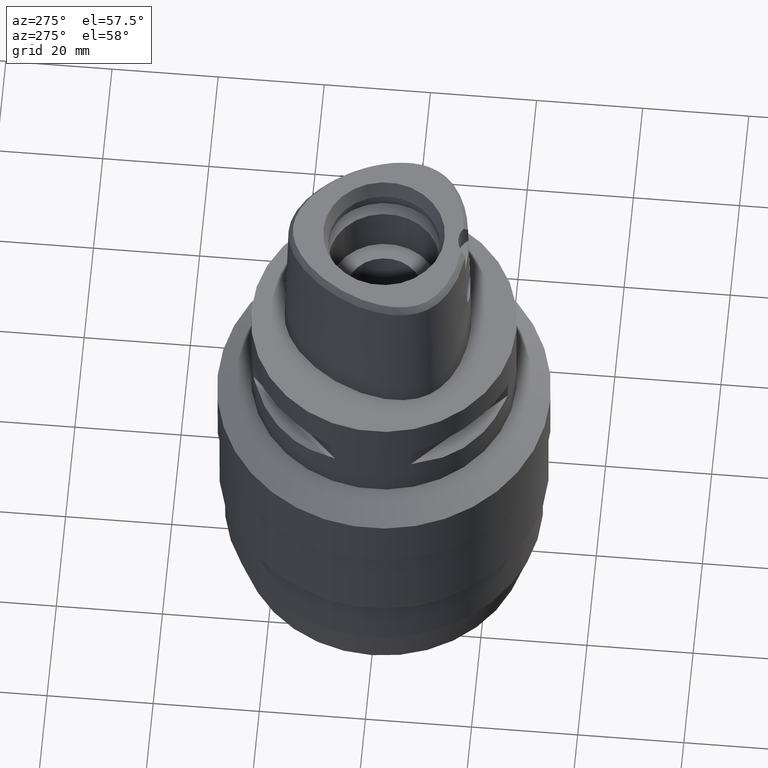
[diagram: clean part render]
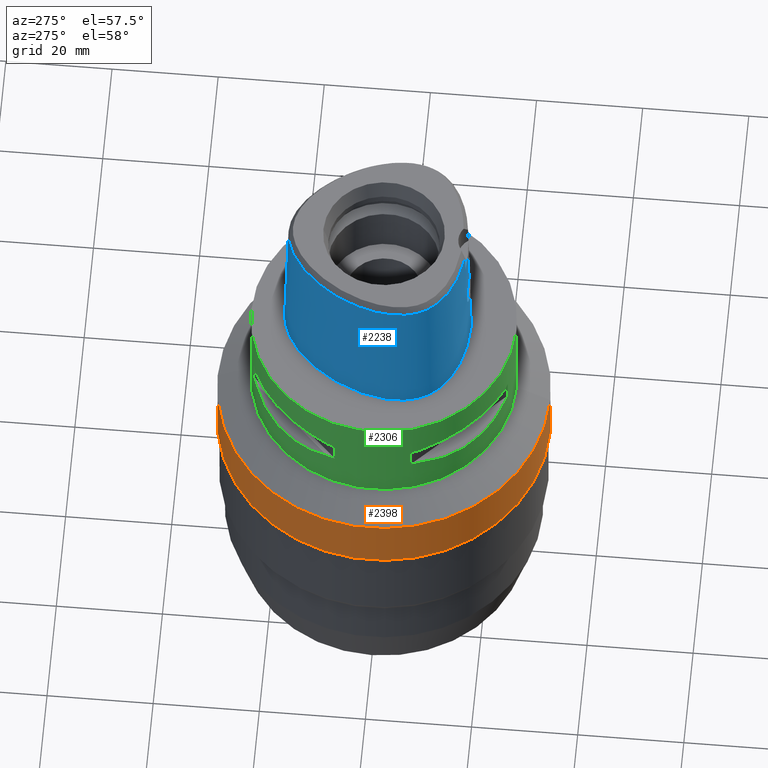
[diagram: same view with three faces highlighted in distinct colors, each labeled with its STEP entity id]
A machine part, auxiliary view with three faces highlighted in distinct colors.
Their STEP definitions:

[orange] entity #2398 — the highlighted cylindrical surface (partial cylindrical patch) has radius 31.35 mm, axis along (0, 0, -1).
#530=CARTESIAN_POINT('',(0.E0,0.E0,-2.38E1));
#531=DIRECTION('',(0.E0,0.E0,-1.E0));
#532=DIRECTION('',(0.E0,-1.E0,0.E0));
#533=AXIS2_PLACEMENT_3D('',#530,#531,#532);
#538=DIRECTION('',(0.E0,5.761157316973E-14,-1.E0));
#539=VECTOR('',#538,1.11E1);
#540=CARTESIAN_POINT('',(0.E0,-3.135E1,-2.38E1));
#541=LINE('',#540,#539);
#545=DIRECTION('',(0.E0,-5.729150887434E-14,-1.E0));
#546=VECTOR('',#545,1.11E1);
#547=CARTESIAN_POINT('',(0.E0,3.135E1,-2.38E1));
#548=LINE('',#547,#546);
#560=CARTESIAN_POINT('',(0.E0,1.270571054115E-14,-3.49E1));
#561=DIRECTION('',(0.E0,0.E0,1.E0));
#562=DIRECTION('',(0.E0,1.E0,0.E0));
#563=AXIS2_PLACEMENT_3D('',#560,#561,#562);
#1542=CARTESIAN_POINT('',(0.E0,3.135E1,-2.38E1));
#1543=VERTEX_POINT('',#1542);
#1544=CARTESIAN_POINT('',(0.E0,-3.135E1,-2.38E1));
#1545=VERTEX_POINT('',#1544);
#1546=CARTESIAN_POINT('',(0.E0,3.135E1,-3.49E1));
#1547=VERTEX_POINT('',#1546);
#1548=CARTESIAN_POINT('',(0.E0,-3.135E1,-3.49E1));
#1549=VERTEX_POINT('',#1548);
#2384=CARTESIAN_POINT('',(0.E0,1.270571054115E-14,3.75E0));
#2385=DIRECTION('',(0.E0,0.E0,-1.E0));
#2386=DIRECTION('',(0.E0,-1.E0,0.E0));
#2387=AXIS2_PLACEMENT_3D('',#2384,#2385,#2386);
#2388=CYLINDRICAL_SURFACE('',#2387,3.135E1);
#2390=ORIENTED_EDGE('',*,*,#2389,.F.);
#2391=ORIENTED_EDGE('',*,*,#2379,.F.);
#2393=ORIENTED_EDGE('',*,*,#2392,.T.);
#2395=ORIENTED_EDGE('',*,*,#2394,.F.);
#2396=EDGE_LOOP('',(#2390,#2391,#2393,#2395));
#2397=FACE_OUTER_BOUND('',#2396,.F.);
#534=CIRCLE('',#533,3.135E1);
#564=CIRCLE('',#563,3.135E1);
#2379=EDGE_CURVE('',#1545,#1543,#534,.T.);
#2389=EDGE_CURVE('',#1543,#1547,#548,.T.);
#2392=EDGE_CURVE('',#1545,#1549,#541,.T.);
#2394=EDGE_CURVE('',#1547,#1549,#564,.T.);
#2398=ADVANCED_FACE('',(#2397),#2388,.T.);

[blue] entity #2238 — the highlighted face is a freeform B-spline surface patch.
#187=CARTESIAN_POINT('',(-3.168920966623E0,-1.555911077539E1,2.852071192347E1));
#188=CARTESIAN_POINT('',(-3.884517856389E0,-1.547570528552E1,2.852068040518E1));
#189=CARTESIAN_POINT('',(-5.248200497963E0,-1.525810002958E1,2.852072901870E1));
#190=CARTESIAN_POINT('',(-7.065822706375E0,-1.481594148473E1,2.852071245252E1));
#191=CARTESIAN_POINT('',(-8.608338377086E0,-1.431204045480E1,2.852073024646E1));
#192=CARTESIAN_POINT('',(-9.987829785444E0,-1.374238611700E1,2.852071182519E1));
#193=CARTESIAN_POINT('',(-1.123990815909E1,-1.310243785663E1,2.852071926074E1));
#194=CARTESIAN_POINT('',(-1.237866437600E1,-1.238702218182E1,2.852071775698E1));
#195=CARTESIAN_POINT('',(-1.335567001410E1,-1.163406576901E1,2.852072132163E1));
#196=CARTESIAN_POINT('',(-1.417075703634E1,-1.086820369456E1,2.852072225842E1));
#197=CARTESIAN_POINT('',(-1.485173204097E1,-1.008571780372E1,2.852069339638E1));
#198=CARTESIAN_POINT('',(-1.541070132544E1,-9.292399935718E0,2.852074899433E1));
#199=CARTESIAN_POINT('',(-1.587296704395E1,-8.463847639202E0,2.852071967804E1));
#200=CARTESIAN_POINT('',(-1.626152301966E1,-7.557150846029E0,2.852071168685E1));
#201=CARTESIAN_POINT('',(-1.657715418668E1,-6.546808372549E0,2.852071902773E1));
#202=CARTESIAN_POINT('',(-1.680857217099E1,-5.424781781533E0,2.852071874841E1));
#203=CARTESIAN_POINT('',(-1.694291913375E1,-4.163477146121E0,2.852072199462E1));
#204=CARTESIAN_POINT('',(-1.695924513623E1,-2.798451713582E0,2.852071751527E1));
#205=CARTESIAN_POINT('',(-1.685323132736E1,-1.373950173062E0,2.852071126629E1));
#206=CARTESIAN_POINT('',(-1.662113904856E1,1.253131917745E-1,2.852072426137E1));
#207=CARTESIAN_POINT('',(-1.624195454248E1,1.756998406373E0,2.852072159127E1));
#208=CARTESIAN_POINT('',(-1.564878954596E1,3.628731921899E0,2.852069913004E1));
#209=CARTESIAN_POINT('',(-1.483858791770E1,5.601373538208E0,2.852072639937E1));
#210=CARTESIAN_POINT('',(-1.384816050785E1,7.551146320285E0,2.852068896074E1));
#211=CARTESIAN_POINT('',(-1.269886950241E1,9.427640821050E0,2.852072875076E1));
#212=CARTESIAN_POINT('',(-1.143079270160E1,1.116954411060E1,2.852071233002E1));
#213=CARTESIAN_POINT('',(-1.009868380050E1,1.271490976543E1,2.852072041081E1));
#214=CARTESIAN_POINT('',(-8.842815370809E0,1.395441200212E1,2.852071208692E1));
#215=CARTESIAN_POINT('',(-7.657362659705E0,1.496129622677E1,2.852072072373E1));
#216=CARTESIAN_POINT('',(-6.468961982821E0,1.582145953896E1,2.852071721470E1));
#217=CARTESIAN_POINT('',(-5.279969267730E0,1.653777950320E1,2.852072806978E1));
#218=CARTESIAN_POINT('',(-4.111913194022E0,1.710425680170E1,2.852071420233E1));
#219=CARTESIAN_POINT('',(-2.996454099152E0,1.751787997183E1,2.852072612376E1));
#220=CARTESIAN_POINT('',(-1.946586940950E0,1.779312330345E1,2.852074278207E1));
#221=CARTESIAN_POINT('',(-9.452646191345E-1,1.794930683705E1,2.852060134136E1));
#222=CARTESIAN_POINT('',(-3.164533681353E-1,1.798202997910E1,2.852071728568E1));
#223=CARTESIAN_POINT('',(-2.940963973554E-11,1.798202997910E1,
2.852071728569E1));
#235=CARTESIAN_POINT('',(-3.168920966623E0,-1.555911077539E1,2.852071192347E1));
#236=CARTESIAN_POINT('',(-3.176474039100E0,-1.556891666509E1,2.809611645937E1));
#237=CARTESIAN_POINT('',(-3.191280249308E0,-1.558832444513E1,2.724696144168E1));
#238=CARTESIAN_POINT('',(-3.213330813519E0,-1.561778410051E1,2.597339362925E1));
#239=CARTESIAN_POINT('',(-3.227943724850E0,-1.563768160294E1,2.512445079602E1));
#240=CARTESIAN_POINT('',(-3.235096612069E0,-1.564751802487E1,2.47E1));
#245=DIRECTION('',(-2.653059663404E-8,-2.499217453618E-2,-9.996876468237E-1));
#246=VECTOR('',#245,7.652390309446E0);
#247=CARTESIAN_POINT('',(2.030224829794E-7,-1.583752876601E1,2.470000006103E1));
#248=LINE('',#247,#246);
#252=CARTESIAN_POINT('',(0.E0,-1.602877864024E1,1.705E1));
#253=CARTESIAN_POINT('',(-2.659945477310E-1,-1.602877864024E1,1.705E1));
#254=CARTESIAN_POINT('',(-7.981539054071E-1,-1.602276557434E1,
1.697998778210E1));
#255=CARTESIAN_POINT('',(-1.542337742670E0,-1.599859727103E1,1.667189267474E1));
#256=CARTESIAN_POINT('',(-2.182298091953E0,-1.596711682406E1,1.618082016301E1));
#257=CARTESIAN_POINT('',(-2.673120543222E0,-1.593921850387E1,1.554028257757E1));
#258=CARTESIAN_POINT('',(-2.980687782776E0,-1.592573160843E1,1.479556193386E1));
#259=CARTESIAN_POINT('',(-3.084822898489E0,-1.593407648873E1,1.399796112571E1));
#260=CARTESIAN_POINT('',(-2.980017946408E0,-1.596586743653E1,1.320269542640E1));
#261=CARTESIAN_POINT('',(-2.672701220910E0,-1.601665099738E1,1.245917485553E1));
#262=CARTESIAN_POINT('',(-2.182455128889E0,-1.607648409626E1,1.181929354118E1));
#263=CARTESIAN_POINT('',(-1.541258646605E0,-1.613247596370E1,1.132732424473E1));
#264=CARTESIAN_POINT('',(-7.963106898853E-1,-1.617186122197E1,
1.101956686934E1));
#265=CARTESIAN_POINT('',(-2.651805195324E-1,-1.618126839359E1,1.095E1));
#266=CARTESIAN_POINT('',(-2.839941135502E-12,-1.618126839359E1,1.095E1));
#271=DIRECTION('',(-1.823516161346E-12,-2.499051295372E-2,-9.996876883619E-1));
#272=VECTOR('',#271,1.095342088082E1);
#273=CARTESIAN_POINT('',(-2.839941135502E-12,-1.618126839359E1,1.095E1));
#274=LINE('',#273,#272);
#336=CARTESIAN_POINT('',(8.526051962113E-11,1.869499999998E1,
1.843710369561E-13));
#337=CARTESIAN_POINT('',(-3.295902286996E-1,1.869499999998E1,
1.843710369561E-13));
#338=CARTESIAN_POINT('',(-1.002985335112E0,1.866090946650E1,
-8.556689603594E-14));
#339=CARTESIAN_POINT('',(-2.051825046745E0,1.849988172968E1,
2.292758069167E-14));
#340=CARTESIAN_POINT('',(-3.151153546863E0,1.821701633359E1,0.E0));
#341=CARTESIAN_POINT('',(-4.306094313347E0,1.779659830554E1,0.E0));
#342=CARTESIAN_POINT('',(-5.521082422670E0,1.721931362985E1,0.E0));
#343=CARTESIAN_POINT('',(-6.796192966167E0,1.646335233060E1,0.E0));
#344=CARTESIAN_POINT('',(-8.124983345303E0,1.550700597930E1,0.E0));
#345=CARTESIAN_POINT('',(-9.492150001320E0,1.433240289764E1,0.E0));
#346=CARTESIAN_POINT('',(-1.086999173217E1,1.293274221499E1,0.E0));
#347=CARTESIAN_POINT('',(-1.222001493305E1,1.131714191408E1,0.E0));
#348=CARTESIAN_POINT('',(-1.349312483126E1,9.518956274388E0,0.E0));
#349=CARTESIAN_POINT('',(-1.464021969767E1,7.591727084754E0,0.E0));
#350=CARTESIAN_POINT('',(-1.562284175445E1,5.597245168072E0,0.E0));
#351=CARTESIAN_POINT('',(-1.641431486142E1,3.604833694828E0,0.E0));
#352=CARTESIAN_POINT('',(-1.700433888615E1,1.678573371268E0,0.E0));
#353=CARTESIAN_POINT('',(-1.739977536545E1,-1.365210252796E-1,0.E0));
#354=CARTESIAN_POINT('',(-1.761817289523E1,-1.814169373656E0,0.E0));
#355=CARTESIAN_POINT('',(-1.768210462071E1,-3.345705481592E0,0.E0));
#356=CARTESIAN_POINT('',(-1.761422053563E1,-4.733089179445E0,0.E0));
#357=CARTESIAN_POINT('',(-1.743458550987E1,-5.985853730703E0,0.E0));
#358=CARTESIAN_POINT('',(-1.715945008666E1,-7.117036385500E0,0.E0));
#359=CARTESIAN_POINT('',(-1.679933853951E1,-8.142031256442E0,0.E0));
#360=CARTESIAN_POINT('',(-1.636691257892E1,-9.064609769411E0,0.E0));
#361=CARTESIAN_POINT('',(-1.585230042748E1,-9.921647337259E0,0.E0));
#362=CARTESIAN_POINT('',(-1.523113374411E1,-1.075202214994E1,0.E0));
#363=CARTESIAN_POINT('',(-1.447972059636E1,-1.157089326507E1,0.E0));
#364=CARTESIAN_POINT('',(-1.358954384204E1,-1.236750703689E1,0.E0));
#365=CARTESIAN_POINT('',(-1.253916863558E1,-1.314100095023E1,0.E0));
#366=CARTESIAN_POINT('',(-1.131019163393E1,-1.388124332008E1,0.E0));
#367=CARTESIAN_POINT('',(-9.885083754719E0,-1.457401107513E1,0.E0));
#368=CARTESIAN_POINT('',(-8.253258215003E0,-1.519878497048E1,0.E0));
#369=CARTESIAN_POINT('',(-6.415940689272E0,-1.572974478990E1,0.E0));
#370=CARTESIAN_POINT('',(-4.395512952990E0,-1.613806306444E1,
2.307944945177E-14));
#371=CARTESIAN_POINT('',(-2.229587999794E0,-1.639613765284E1,
-8.613367796472E-14));
#372=CARTESIAN_POINT('',(-7.522910927296E-1,-1.6455E1,1.855922822832E-13));
#373=CARTESIAN_POINT('',(-2.281368113370E-11,-1.6455E1,1.855922822832E-13));
#973=DIRECTION('',(4.019336028030E-12,2.499051285786E-2,-9.996876883643E-1));
#974=VECTOR('',#973,2.852962742029E1);
#975=CARTESIAN_POINT('',(-2.940963973554E-11,1.798202997910E1,
2.852071728569E1));
#976=LINE('',#975,#974);
#990=CARTESIAN_POINT('',(2.030224829794E-7,-1.583752876601E1,2.470000006103E1));
#991=CARTESIAN_POINT('',(-3.604657533404E-1,-1.583752876587E1,
2.470000006103E1));
#992=CARTESIAN_POINT('',(-1.080736565087E0,-1.582371258234E1,2.469999997152E1));
#993=CARTESIAN_POINT('',(-2.160152508818E0,-1.576019554973E1,2.470000000814E1));
#994=CARTESIAN_POINT('',(-2.877122210813E0,-1.568999562894E1,2.47E1));
#995=CARTESIAN_POINT('',(-3.235096612069E0,-1.564751802487E1,2.47E1));
#1471=CARTESIAN_POINT('',(-3.235121119989E0,-1.564755630482E1,2.47E1));
#1472=VERTEX_POINT('',#1471);
#1473=VERTEX_POINT('',#235);
#1474=CARTESIAN_POINT('',(-2.940963973554E-11,1.798202997910E1,
2.852071728569E1));
#1475=VERTEX_POINT('',#1474);
#1476=VERTEX_POINT('',#336);
#1477=VERTEX_POINT('',#373);
#1478=VERTEX_POINT('',#990);
#1479=CARTESIAN_POINT('',(0.E0,-1.602877864024E1,1.705E1));
#1480=VERTEX_POINT('',#1479);
#1481=VERTEX_POINT('',#266);
#2125=CARTESIAN_POINT('',(5.756361491672E-1,1.869183960035E1,
-5.704147074299E-1));
#2126=CARTESIAN_POINT('',(5.606135745497E-1,1.844514041E1,9.316773554689E0));
#2127=CARTESIAN_POINT('',(5.455909999321E-1,1.819844121966E1,1.920396181681E1));
#2128=CARTESIAN_POINT('',(5.305684253145E-1,1.795174202931E1,2.909115007893E1));
#2129=CARTESIAN_POINT('',(3.838142946476E-1,1.870350312540E1,
-5.704147074299E-1));
#2130=CARTESIAN_POINT('',(3.738602554981E-1,1.845648975741E1,9.316773554689E0));
#2131=CARTESIAN_POINT('',(3.639062163487E-1,1.820947638942E1,1.920396181681E1));
#2132=CARTESIAN_POINT('',(3.539521771992E-1,1.796246302144E1,2.909115007893E1));
#2133=CARTESIAN_POINT('',(-4.893119563713E-1,1.872969240808E1,
-5.704147074299E-1));
#2134=CARTESIAN_POINT('',(-4.764648006419E-1,1.848199781444E1,
9.316773554689E0));
#2135=CARTESIAN_POINT('',(-4.636176449126E-1,1.823430322080E1,
1.920396181681E1));
#2136=CARTESIAN_POINT('',(-4.507704891833E-1,1.798660862716E1,
2.909115007893E1));
#2137=CARTESIAN_POINT('',(-2.043508293111E0,1.856419797011E1,
-5.704147074299E-1));
#2138=CARTESIAN_POINT('',(-1.992618745416E0,1.832080815481E1,9.316773554689E0));
#2139=CARTESIAN_POINT('',(-1.941729197722E0,1.807741833952E1,1.920396181681E1));
#2140=CARTESIAN_POINT('',(-1.890839650027E0,1.783402852422E1,2.909115007893E1));
#2141=CARTESIAN_POINT('',(-4.735056264744E0,1.774784407955E1,
-5.704147074299E-1));
#2142=CARTESIAN_POINT('',(-4.628819260665E0,1.752182795065E1,9.316773554689E0));
#2143=CARTESIAN_POINT('',(-4.522582256586E0,1.729581182174E1,1.920396181681E1));
#2144=CARTESIAN_POINT('',(-4.416345252507E0,1.706979569284E1,2.909115007893E1));
#2145=CARTESIAN_POINT('',(-7.976721801780E0,1.584201698630E1,
-5.704147074299E-1));
#2146=CARTESIAN_POINT('',(-7.822764750827E0,1.564591005711E1,9.316773554689E0));
#2147=CARTESIAN_POINT('',(-7.668807699875E0,1.544980312791E1,1.920396181681E1));
#2148=CARTESIAN_POINT('',(-7.514850648922E0,1.525369619872E1,2.909115007893E1));
#2149=CARTESIAN_POINT('',(-1.147659488524E1,1.246143684866E1,
-5.704147074299E-1));
#2150=CARTESIAN_POINT('',(-1.128662493177E1,1.230111480531E1,9.316773554689E0));
#2151=CARTESIAN_POINT('',(-1.109665497829E1,1.214079276196E1,1.920396181681E1));
#2152=CARTESIAN_POINT('',(-1.090668502482E1,1.198047071862E1,2.909115007893E1));
#2153=CARTESIAN_POINT('',(-1.439249255243E1,8.309508948829E0,
-5.704147074299E-1));
#2154=CARTESIAN_POINT('',(-1.417736238989E1,8.185312169110E0,9.316773554689E0));
#2155=CARTESIAN_POINT('',(-1.396223222735E1,8.061115389391E0,1.920396181681E1));
#2156=CARTESIAN_POINT('',(-1.374710206480E1,7.936918609672E0,2.909115007893E1));
#2157=CARTESIAN_POINT('',(-1.653021708596E1,3.708305584570E0,
-5.704147074299E-1));
#2158=CARTESIAN_POINT('',(-1.629641055780E1,3.623925452023E0,9.316773554689E0));
#2159=CARTESIAN_POINT('',(-1.606260402964E1,3.539545319477E0,1.920396181681E1));
#2160=CARTESIAN_POINT('',(-1.582879750148E1,3.455165186930E0,2.909115007893E1));
#2161=CARTESIAN_POINT('',(-1.751166498568E1,-2.260900528266E-1,
-5.704147074299E-1));
#2162=CARTESIAN_POINT('',(-1.726695536711E1,-2.694874704981E-1,
9.316773554689E0));
#2163=CARTESIAN_POINT('',(-1.702224574854E1,-3.128848881696E-1,
1.920396181681E1));
#2164=CARTESIAN_POINT('',(-1.677753612996E1,-3.562823058411E-1,
2.909115007893E1));
#2165=CARTESIAN_POINT('',(-1.772574106037E1,-3.269125760293E0,
-5.704147074299E-1));
#2166=CARTESIAN_POINT('',(-1.747781017788E1,-3.270737581889E0,
9.316773554689E0));
#2167=CARTESIAN_POINT('',(-1.722987929538E1,-3.272349403486E0,
1.920396181681E1));
#2168=CARTESIAN_POINT('',(-1.698194841289E1,-3.273961225083E0,
2.909115007893E1));
#2169=CARTESIAN_POINT('',(-1.757791639742E1,-5.458025465942E0,
-5.704147074299E-1));
#2170=CARTESIAN_POINT('',(-1.733218228386E1,-5.422849681279E0,
9.316773554689E0));
#2171=CARTESIAN_POINT('',(-1.708644817031E1,-5.387673896615E0,
1.920396181681E1));
#2172=CARTESIAN_POINT('',(-1.684071405675E1,-5.352498111951E0,
2.909115007893E1));
#2173=CARTESIAN_POINT('',(-1.717866842953E1,-7.169980044677E0,
-5.704147074299E-1));
#2174=CARTESIAN_POINT('',(-1.694089129300E1,-7.099401457767E0,
9.316773554689E0));
#2175=CARTESIAN_POINT('',(-1.670311415647E1,-7.028822870857E0,
1.920396181681E1));
#2176=CARTESIAN_POINT('',(-1.646533701995E1,-6.958244283946E0,
2.909115007893E1));
#2177=CARTESIAN_POINT('',(-1.668217932145E1,-8.451606616825E0,
-5.704147074299E-1));
#2178=CARTESIAN_POINT('',(-1.645596372047E1,-8.350972133535E0,
9.316773554689E0));
#2179=CARTESIAN_POINT('',(-1.622974811948E1,-8.250337650245E0,
1.920396181681E1));
#2180=CARTESIAN_POINT('',(-1.600353251850E1,-8.149703166955E0,
2.909115007893E1));
#2181=CARTESIAN_POINT('',(-1.621839714813E1,-9.363695959317E0,
-5.704147074299E-1));
#2182=CARTESIAN_POINT('',(-1.600394172090E1,-9.239880060317E0,
9.316773554689E0));
#2183=CARTESIAN_POINT('',(-1.578948629368E1,-9.116064161318E0,
1.920396181681E1));
#2184=CARTESIAN_POINT('',(-1.557503086645E1,-8.992248262318E0,
2.909115007893E1));
#2185=CARTESIAN_POINT('',(-1.566039569382E1,-1.022138777445E1,
-5.704147074299E-1));
#2186=CARTESIAN_POINT('',(-1.546013587191E1,-1.007579655897E1,
9.316773554689E0));
#2187=CARTESIAN_POINT('',(-1.525987605E1,-9.930205343488E0,1.920396181681E1));
#2188=CARTESIAN_POINT('',(-1.505961622809E1,-9.784614128007E0,
2.909115007893E1));
#2189=CARTESIAN_POINT('',(-1.479871907733E1,-1.129217324080E1,
-5.704147074299E-1));
#2190=CARTESIAN_POINT('',(-1.461870767299E1,-1.112154149396E1,
9.316773554689E0));
#2191=CARTESIAN_POINT('',(-1.443869626866E1,-1.095090974713E1,
1.920396181681E1));
#2192=CARTESIAN_POINT('',(-1.425868486432E1,-1.078027800029E1,
2.909115007893E1));
#2193=CARTESIAN_POINT('',(-1.351574691286E1,-1.249390941301E1,
-5.704147074299E-1));
#2194=CARTESIAN_POINT('',(-1.336241662652E1,-1.229868531671E1,
9.316773554689E0));
#2195=CARTESIAN_POINT('',(-1.320908634018E1,-1.210346122040E1,
1.920396181681E1));
#2196=CARTESIAN_POINT('',(-1.305575605384E1,-1.190823712410E1,
2.909115007893E1));
#2197=CARTESIAN_POINT('',(-1.169401646434E1,-1.371637917826E1,
-5.704147074299E-1));
#2198=CARTESIAN_POINT('',(-1.157144729024E1,-1.350085883851E1,
9.316773554689E0));
#2199=CARTESIAN_POINT('',(-1.144887811614E1,-1.328533849877E1,
1.920396181681E1));
#2200=CARTESIAN_POINT('',(-1.132630894204E1,-1.306981815902E1,
2.909115007893E1));
#2201=CARTESIAN_POINT('',(-8.951632341020E0,-1.505250171794E1,
-5.704147074299E-1));
#2202=CARTESIAN_POINT('',(-8.866858737219E0,-1.481887819032E1,
9.316773554689E0));
#2203=CARTESIAN_POINT('',(-8.782085133418E0,-1.458525466269E1,
1.920396181681E1));
#2204=CARTESIAN_POINT('',(-8.697311529618E0,-1.435163113507E1,
2.909115007893E1));
#2205=CARTESIAN_POINT('',(-5.053620743906E0,-1.616974068507E1,
-5.704147074299E-1));
#2206=CARTESIAN_POINT('',(-5.009809420793E0,-1.592506881042E1,
9.316773554689E0));
#2207=CARTESIAN_POINT('',(-4.965998097681E0,-1.568039693576E1,
1.920396181681E1));
#2208=CARTESIAN_POINT('',(-4.922186774568E0,-1.543572506111E1,
2.909115007893E1));
#2209=CARTESIAN_POINT('',(-1.321318947076E0,-1.650155084641E1,
-5.704147074299E-1));
#2210=CARTESIAN_POINT('',(-1.309813751751E0,-1.625411916665E1,
9.316773554689E0));
#2211=CARTESIAN_POINT('',(-1.298308556426E0,-1.600668748689E1,
1.920396181681E1));
#2212=CARTESIAN_POINT('',(-1.286803361101E0,-1.575925580713E1,
2.909115007893E1));
#2213=CARTESIAN_POINT('',(7.264497205535E-1,-1.646229666020E1,
-5.704147074299E-1));
#2214=CARTESIAN_POINT('',(7.201291704897E-1,-1.621519147407E1,
9.316773554689E0));
#2215=CARTESIAN_POINT('',(7.138086204259E-1,-1.596808628793E1,
1.920396181681E1));
#2216=CARTESIAN_POINT('',(7.074880703622E-1,-1.572098110180E1,
2.909115007893E1));
#2217=CARTESIAN_POINT('',(1.089046662283E0,-1.644835921941E1,
-5.704147074299E-1));
#2218=CARTESIAN_POINT('',(1.079551360980E0,-1.620136643650E1,9.316773554689E0));
#2219=CARTESIAN_POINT('',(1.070056059676E0,-1.595437365360E1,1.920396181681E1));
#2220=CARTESIAN_POINT('',(1.060560758373E0,-1.570738087070E1,2.909115007893E1));
#2221=B_SPLINE_SURFACE_WITH_KNOTS('',3,3,((#2125,#2126,#2127,#2128),(#2129,
#2130,#2131,#2132),(#2133,#2134,#2135,#2136),(#2137,#2138,#2139,#2140),(#2141,
#2142,#2143,#2144),(#2145,#2146,#2147,#2148),(#2149,#2150,#2151,#2152),(#2153,
#2154,#2155,#2156),(#2157,#2158,#2159,#2160),(#2161,#2162,#2163,#2164),(#2165,
#2166,#2167,#2168),(#2169,#2170,#2171,#2172),(#2173,#2174,#2175,#2176),(#2177,
#2178,#2179,#2180),(#2181,#2182,#2183,#2184),(#2185,#2186,#2187,#2188),(#2189,
#2190,#2191,#2192),(#2193,#2194,#2195,#2196),(#2197,#2198,#2199,#2200),(#2201,
#2202,#2203,#2204),(#2205,#2206,#2207,#2208),(#2209,#2210,#2211,#2212),(#2213,
#2214,#2215,#2216),(#2217,#2218,#2219,#2220)),.UNSPECIFIED.,.F.,.F.,.F.,(4,1,1,
1,1,1,1,1,1,1,1,1,1,1,1,1,1,1,1,1,1,4),(4,4),(-1.173812893907E-2,0.E0,
4.166666666834E-2,8.333333333493E-2,1.666666666682E-1,2.500000000013E-1,
3.333333333345E-1,4.166666666677E-1,5.000000000009E-1,5.416666666675E-1,
5.833333333341E-1,6.250000000007E-1,6.458333333340E-1,6.666666666673E-1,
6.875000000006E-1,7.083333333339E-1,7.500000000005E-1,7.916666666671E-1,
8.333333333337E-1,9.166666666669E-1,1.E0,1.017968513185E0),(1.193155994145E-9,
9.999999391491E-1),.UNSPECIFIED.);
#2223=ORIENTED_EDGE('',*,*,#2222,.F.);
#2225=ORIENTED_EDGE('',*,*,#2224,.F.);
#2226=ORIENTED_EDGE('',*,*,#2118,.F.);
#2227=ORIENTED_EDGE('',*,*,#1651,.T.);
#2229=ORIENTED_EDGE('',*,*,#2228,.F.);
#2231=ORIENTED_EDGE('',*,*,#2230,.T.);
#2233=ORIENTED_EDGE('',*,*,#2232,.T.);
#2235=ORIENTED_EDGE('',*,*,#2234,.T.);
#2236=EDGE_LOOP('',(#2223,#2225,#2226,#2227,#2229,#2231,#2233,#2235));
#2237=FACE_OUTER_BOUND('',#2236,.F.);
#224=B_SPLINE_CURVE_WITH_KNOTS('',3,(#187,#188,#189,#190,#191,#192,#193,#194,
#195,#196,#197,#198,#199,#200,#201,#202,#203,#204,#205,#206,#207,#208,#209,#210,
#211,#212,#213,#214,#215,#216,#217,#218,#219,#220,#221,#222,#223),.UNSPECIFIED.,
.F.,.F.,(4,1,1,1,1,1,1,1,1,1,1,1,1,1,1,1,1,1,1,1,1,1,1,1,1,1,1,1,1,1,1,1,1,1,4),
(0.E0,2.941176470588E-2,5.882352941176E-2,8.823529411765E-2,1.176470588235E-1,
1.470588235294E-1,1.764705882353E-1,2.058823529412E-1,2.352941176471E-1,
2.647058823529E-1,2.941176470588E-1,3.235294117647E-1,3.529411764706E-1,
3.823529411765E-1,4.117647058824E-1,4.411764705882E-1,4.705882352941E-1,5.E-1,
5.294117647059E-1,5.588235294118E-1,5.882352941176E-1,6.176470588235E-1,
6.470588235294E-1,6.764705882353E-1,7.058823529412E-1,7.352941176471E-1,
7.647058823529E-1,7.941176470588E-1,8.235294117647E-1,8.529411764706E-1,
8.823529411765E-1,9.117647058824E-1,9.411764705882E-1,9.705882352941E-1,1.E0),
.UNSPECIFIED.);
#241=B_SPLINE_CURVE_WITH_KNOTS('',3,(#235,#236,#237,#238,#239,#240),
.UNSPECIFIED.,.F.,.F.,(4,1,1,4),(0.E0,3.333333333333E-1,6.666666666667E-1,1.E0),
.UNSPECIFIED.);
#267=B_SPLINE_CURVE_WITH_KNOTS('',3,(#252,#253,#254,#255,#256,#257,#258,#259,
#260,#261,#262,#263,#264,#265,#266),.UNSPECIFIED.,.F.,.F.,(4,1,1,1,1,1,1,1,1,1,
1,1,4),(0.E0,8.333333333333E-2,1.666666666667E-1,2.5E-1,3.333333333333E-1,
4.166666666667E-1,5.E-1,5.833333333333E-1,6.666666666667E-1,7.5E-1,
8.333333333333E-1,9.166666666667E-1,1.E0),.UNSPECIFIED.);
#374=B_SPLINE_CURVE_WITH_KNOTS('',3,(#336,#337,#338,#339,#340,#341,#342,#343,
#344,#345,#346,#347,#348,#349,#350,#351,#352,#353,#354,#355,#356,#357,#358,#359,
#360,#361,#362,#363,#364,#365,#366,#367,#368,#369,#370,#371,#372,#373),
.UNSPECIFIED.,.F.,.F.,(4,1,1,1,1,1,1,1,1,1,1,1,1,1,1,1,1,1,1,1,1,1,1,1,1,1,1,1,
1,1,1,1,1,1,1,4),(0.E0,2.857142857143E-2,5.714285714286E-2,8.571428571429E-2,
1.142857142857E-1,1.428571428571E-1,1.714285714286E-1,2.E-1,2.285714285714E-1,
2.571428571429E-1,2.857142857143E-1,3.142857142857E-1,3.428571428571E-1,
3.714285714286E-1,4.E-1,4.285714285714E-1,4.571428571429E-1,4.857142857143E-1,
5.142857142857E-1,5.428571428571E-1,5.714285714286E-1,6.E-1,6.285714285714E-1,
6.571428571429E-1,6.857142857143E-1,7.142857142857E-1,7.428571428571E-1,
7.714285714286E-1,8.E-1,8.285714285714E-1,8.571428571429E-1,8.857142857143E-1,
9.142857142857E-1,9.428571428571E-1,9.714285714286E-1,1.E0),.UNSPECIFIED.);
#996=B_SPLINE_CURVE_WITH_KNOTS('',3,(#990,#991,#992,#993,#994,#995),
.UNSPECIFIED.,.F.,.F.,(4,1,1,4),(0.E0,3.333333333333E-1,6.666666666667E-1,1.E0),
.UNSPECIFIED.);
#1651=EDGE_CURVE('',#1473,#1472,#241,.T.);
#2118=EDGE_CURVE('',#1473,#1475,#224,.T.);
#2222=EDGE_CURVE('',#1476,#1477,#374,.T.);
#2224=EDGE_CURVE('',#1475,#1476,#976,.T.);
#2228=EDGE_CURVE('',#1478,#1472,#996,.T.);
#2230=EDGE_CURVE('',#1478,#1480,#248,.T.);
#2232=EDGE_CURVE('',#1480,#1481,#267,.T.);
#2234=EDGE_CURVE('',#1481,#1477,#274,.T.);
#2238=ADVANCED_FACE('',(#2237),#2221,.T.);

[green] entity #2306 — the highlighted cylindrical surface (partial cylindrical patch) has radius 25 mm, axis along (0, 0, -1).
#278=CARTESIAN_POINT('',(0.E0,1.270571054115E-14,0.E0));
#279=DIRECTION('',(0.E0,0.E0,-1.E0));
#280=DIRECTION('',(0.E0,-1.E0,0.E0));
#281=AXIS2_PLACEMENT_3D('',#278,#279,#280);
#378=DIRECTION('',(0.E0,-7.622854817562E-14,-1.E0));
#379=VECTOR('',#378,2.013382579065E1);
#380=CARTESIAN_POINT('',(0.E0,-2.5E1,0.E0));
#381=LINE('',#380,#379);
#385=DIRECTION('',(0.E0,0.E0,-1.E0));
#386=VECTOR('',#385,4.1E0);
#387=CARTESIAN_POINT('',(-7.159921374231E0,2.395277699798E1,-7.95E0));
#388=LINE('',#387,#386);
#392=CARTESIAN_POINT('',(-8.646484890752E0,2.345715880140E1,-1.205E1));
#393=CARTESIAN_POINT('',(-1.045010326509E1,2.279233152396E1,-1.251490951850E1));
#394=CARTESIAN_POINT('',(-1.371898848499E1,2.112432544032E1,-1.316846568912E1));
#395=CARTESIAN_POINT('',(-1.780567581317E1,1.780567581317E1,-1.348201576758E1));
#396=CARTESIAN_POINT('',(-2.112432544032E1,1.371898848499E1,-1.316846568912E1));
#397=CARTESIAN_POINT('',(-2.279233152396E1,1.045010326509E1,-1.251490951850E1));
#398=CARTESIAN_POINT('',(-2.345715880140E1,8.646484890752E0,-1.205E1));
#403=DIRECTION('',(0.E0,0.E0,1.E0));
#404=VECTOR('',#403,4.1E0);
#405=CARTESIAN_POINT('',(-2.395277699798E1,7.159921374231E0,-1.205E1));
#406=LINE('',#405,#404);
#410=DIRECTION('',(0.E0,0.E0,-1.E0));
#411=VECTOR('',#410,4.1E0);
#412=CARTESIAN_POINT('',(-2.395277699798E1,-7.159921374231E0,-7.95E0));
#413=LINE('',#412,#411);
#417=CARTESIAN_POINT('',(-2.345715880140E1,-8.646484890752E0,-1.205E1));
#418=CARTESIAN_POINT('',(-2.279233152396E1,-1.045010326509E1,
-1.251490951850E1));
#419=CARTESIAN_POINT('',(-2.112432544032E1,-1.371898848499E1,
-1.316846568912E1));
#420=CARTESIAN_POINT('',(-1.780567581317E1,-1.780567581317E1,
-1.348201576758E1));
#421=CARTESIAN_POINT('',(-1.371898848499E1,-2.112432544032E1,
-1.316846568912E1));
#422=CARTESIAN_POINT('',(-1.045010326509E1,-2.279233152396E1,
-1.251490951850E1));
#423=CARTESIAN_POINT('',(-8.646484890752E0,-2.345715880140E1,-1.205E1));
#428=DIRECTION('',(0.E0,0.E0,1.E0));
#429=VECTOR('',#428,4.1E0);
#430=CARTESIAN_POINT('',(-7.159921374231E0,-2.395277699798E1,-1.205E1));
#431=LINE('',#430,#429);
#435=DIRECTION('',(0.E0,7.552272828510E-14,-1.E0));
#436=VECTOR('',#435,2.013382579065E1);
#437=CARTESIAN_POINT('',(0.E0,2.5E1,0.E0));
#438=LINE('',#437,#436);
#515=CARTESIAN_POINT('',(0.E0,0.E0,-2.013382579064E1));
#516=DIRECTION('',(0.E0,0.E0,1.E0));
#517=DIRECTION('',(0.E0,1.E0,0.E0));
#518=AXIS2_PLACEMENT_3D('',#515,#516,#517);
#1318=CARTESIAN_POINT('',(-8.646484890752E0,2.345715880140E1,
-7.949999999999E0));
#1319=CARTESIAN_POINT('',(-1.045010326509E1,2.279233152396E1,
-7.485090481495E0));
#1320=CARTESIAN_POINT('',(-1.371898848499E1,2.112432544032E1,
-6.831534310876E0));
#1321=CARTESIAN_POINT('',(-1.780567581317E1,1.780567581317E1,
-6.517984232422E0));
#1322=CARTESIAN_POINT('',(-2.112432544032E1,1.371898848499E1,
-6.831534310876E0));
#1323=CARTESIAN_POINT('',(-2.279233152396E1,1.045010326509E1,
-7.485090481496E0));
#1324=CARTESIAN_POINT('',(-2.345715880140E1,8.646484890752E0,
-7.949999999999E0));
#1329=CARTESIAN_POINT('',(0.E0,1.270571054115E-14,-7.95E0));
#1330=DIRECTION('',(0.E0,0.E0,1.E0));
#1331=DIRECTION('',(-9.382863520558E-1,3.458593956303E-1,0.E0));
#1332=AXIS2_PLACEMENT_3D('',#1329,#1330,#1331);
#1337=CARTESIAN_POINT('',(0.E0,1.270571054115E-14,-7.95E0));
#1338=DIRECTION('',(0.E0,0.E0,1.E0));
#1339=DIRECTION('',(-2.863968549694E-1,9.581110799190E-1,0.E0));
#1340=AXIS2_PLACEMENT_3D('',#1337,#1338,#1339);
#1359=CARTESIAN_POINT('',(0.E0,1.270571054115E-14,-1.205E1));
#1360=DIRECTION('',(0.E0,0.E0,-1.E0));
#1361=DIRECTION('',(-9.581110799190E-1,2.863968549694E-1,0.E0));
#1362=AXIS2_PLACEMENT_3D('',#1359,#1360,#1361);
#1367=CARTESIAN_POINT('',(0.E0,1.270571054115E-14,-1.205E1));
#1368=DIRECTION('',(0.E0,0.E0,-1.E0));
#1369=DIRECTION('',(-3.458593956303E-1,9.382863520558E-1,0.E0));
#1370=AXIS2_PLACEMENT_3D('',#1367,#1368,#1369);
#1389=CARTESIAN_POINT('',(-2.345715880140E1,-8.646484890752E0,
-7.949999999999E0));
#1390=CARTESIAN_POINT('',(-2.279233152396E1,-1.045010326509E1,
-7.485090481496E0));
#1391=CARTESIAN_POINT('',(-2.112432544032E1,-1.371898848499E1,
-6.831534310876E0));
#1392=CARTESIAN_POINT('',(-1.780567581317E1,-1.780567581317E1,
-6.517984232422E0));
#1393=CARTESIAN_POINT('',(-1.371898848499E1,-2.112432544032E1,
-6.831534310876E0));
#1394=CARTESIAN_POINT('',(-1.045010326509E1,-2.279233152396E1,
-7.485090481496E0));
#1395=CARTESIAN_POINT('',(-8.646484890752E0,-2.345715880140E1,
-7.949999999999E0));
#1400=CARTESIAN_POINT('',(0.E0,1.270571054115E-14,-7.95E0));
#1401=DIRECTION('',(0.E0,0.E0,1.E0));
#1402=DIRECTION('',(-3.458593956303E-1,-9.382863520558E-1,0.E0));
#1403=AXIS2_PLACEMENT_3D('',#1400,#1401,#1402);
#1408=CARTESIAN_POINT('',(0.E0,1.270571054115E-14,-7.95E0));
#1409=DIRECTION('',(0.E0,0.E0,1.E0));
#1410=DIRECTION('',(-9.581110799190E-1,-2.863968549694E-1,0.E0));
#1411=AXIS2_PLACEMENT_3D('',#1408,#1409,#1410);
#1430=CARTESIAN_POINT('',(0.E0,1.270571054115E-14,-1.205E1));
#1431=DIRECTION('',(0.E0,0.E0,-1.E0));
#1432=DIRECTION('',(-2.863968549694E-1,-9.581110799190E-1,0.E0));
#1433=AXIS2_PLACEMENT_3D('',#1430,#1431,#1432);
#1438=CARTESIAN_POINT('',(0.E0,1.270571054115E-14,-1.205E1));
#1439=DIRECTION('',(0.E0,0.E0,-1.E0));
#1440=DIRECTION('',(-9.382863520558E-1,-3.458593956303E-1,0.E0));
#1441=AXIS2_PLACEMENT_3D('',#1438,#1439,#1440);
#1482=CARTESIAN_POINT('',(0.E0,-2.5E1,0.E0));
#1483=CARTESIAN_POINT('',(0.E0,2.5E1,0.E0));
#1484=VERTEX_POINT('',#1482);
#1485=VERTEX_POINT('',#1483);
#1486=CARTESIAN_POINT('',(0.E0,2.5E1,-2.013382579065E1));
#1487=VERTEX_POINT('',#1486);
#1488=CARTESIAN_POINT('',(0.E0,-2.5E1,-2.013382579065E1));
#1489=VERTEX_POINT('',#1488);
#1490=VERTEX_POINT('',#1318);
#1491=VERTEX_POINT('',#1324);
#1492=CARTESIAN_POINT('',(-7.159921374235E0,2.395277699798E1,-7.95E0));
#1493=VERTEX_POINT('',#1492);
#1494=CARTESIAN_POINT('',(-7.159921374231E0,2.395277699798E1,-1.205E1));
#1495=VERTEX_POINT('',#1494);
#1496=CARTESIAN_POINT('',(-8.646484890757E0,2.345715880140E1,-1.205E1));
#1497=VERTEX_POINT('',#1496);
#1498=VERTEX_POINT('',#398);
#1499=CARTESIAN_POINT('',(-2.395277699798E1,7.159921374235E0,-1.205E1));
#1500=VERTEX_POINT('',#1499);
#1501=CARTESIAN_POINT('',(-2.395277699798E1,7.159921374231E0,-7.95E0));
#1502=VERTEX_POINT('',#1501);
#1503=VERTEX_POINT('',#1389);
#1504=VERTEX_POINT('',#1395);
#1505=CARTESIAN_POINT('',(-2.395277699798E1,-7.159921374235E0,-7.95E0));
#1506=VERTEX_POINT('',#1505);
#1507=CARTESIAN_POINT('',(-2.395277699798E1,-7.159921374231E0,-1.205E1));
#1508=VERTEX_POINT('',#1507);
#1509=CARTESIAN_POINT('',(-2.345715880140E1,-8.646484890757E0,-1.205E1));
#1510=VERTEX_POINT('',#1509);
#1511=VERTEX_POINT('',#423);
#1512=CARTESIAN_POINT('',(-7.159921374235E0,-2.395277699798E1,-1.205E1));
#1513=VERTEX_POINT('',#1512);
#1514=CARTESIAN_POINT('',(-7.159921374231E0,-2.395277699798E1,-7.95E0));
#1515=VERTEX_POINT('',#1514);
#2256=CARTESIAN_POINT('',(0.E0,1.270571054115E-14,3.75E0));
#2257=DIRECTION('',(0.E0,0.E0,-1.E0));
#2258=DIRECTION('',(0.E0,-1.E0,0.E0));
#2259=AXIS2_PLACEMENT_3D('',#2256,#2257,#2258);
#2260=CYLINDRICAL_SURFACE('',#2259,2.5E1);
#2262=ORIENTED_EDGE('',*,*,#2261,.F.);
#2263=ORIENTED_EDGE('',*,*,#2244,.F.);
#2265=ORIENTED_EDGE('',*,*,#2264,.T.);
#2267=ORIENTED_EDGE('',*,*,#2266,.F.);
#2268=EDGE_LOOP('',(#2262,#2263,#2265,#2267));
#2269=FACE_OUTER_BOUND('',#2268,.F.);
#2271=ORIENTED_EDGE('',*,*,#2270,.F.);
#2273=ORIENTED_EDGE('',*,*,#2272,.F.);
#2275=ORIENTED_EDGE('',*,*,#2274,.T.);
#2277=ORIENTED_EDGE('',*,*,#2276,.F.);
#2279=ORIENTED_EDGE('',*,*,#2278,.T.);
#2281=ORIENTED_EDGE('',*,*,#2280,.F.);
#2283=ORIENTED_EDGE('',*,*,#2282,.T.);
#2285=ORIENTED_EDGE('',*,*,#2284,.F.);
#2286=EDGE_LOOP('',(#2271,#2273,#2275,#2277,#2279,#2281,#2283,#2285));
#2287=FACE_BOUND('',#2286,.F.);
#2289=ORIENTED_EDGE('',*,*,#2288,.F.);
#2291=ORIENTED_EDGE('',*,*,#2290,.F.);
#2293=ORIENTED_EDGE('',*,*,#2292,.T.);
#2295=ORIENTED_EDGE('',*,*,#2294,.F.);
#2297=ORIENTED_EDGE('',*,*,#2296,.T.);
#2299=ORIENTED_EDGE('',*,*,#2298,.F.);
#2301=ORIENTED_EDGE('',*,*,#2300,.T.);
#2303=ORIENTED_EDGE('',*,*,#2302,.F.);
#2304=EDGE_LOOP('',(#2289,#2291,#2293,#2295,#2297,#2299,#2301,#2303));
#2305=FACE_BOUND('',#2304,.F.);
#282=CIRCLE('',#281,2.5E1);
#399=B_SPLINE_CURVE_WITH_KNOTS('',3,(#392,#393,#394,#395,#396,#397,#398),
.UNSPECIFIED.,.F.,.F.,(4,1,1,1,4),(0.E0,2.5E-1,5.E-1,7.5E-1,1.E0),
.UNSPECIFIED.);
#424=B_SPLINE_CURVE_WITH_KNOTS('',3,(#417,#418,#419,#420,#421,#422,#423),
.UNSPECIFIED.,.F.,.F.,(4,1,1,1,4),(0.E0,2.5E-1,5.E-1,7.5E-1,1.E0),
.UNSPECIFIED.);
#519=CIRCLE('',#518,2.5E1);
#1325=B_SPLINE_CURVE_WITH_KNOTS('',3,(#1318,#1319,#1320,#1321,#1322,#1323,
#1324),.UNSPECIFIED.,.F.,.F.,(4,1,1,1,4),(0.E0,2.5E-1,5.E-1,7.5E-1,1.E0),
.UNSPECIFIED.);
#1333=CIRCLE('',#1332,2.5E1);
#1341=CIRCLE('',#1340,2.5E1);
#1363=CIRCLE('',#1362,2.5E1);
#1371=CIRCLE('',#1370,2.5E1);
#1396=B_SPLINE_CURVE_WITH_KNOTS('',3,(#1389,#1390,#1391,#1392,#1393,#1394,
#1395),.UNSPECIFIED.,.F.,.F.,(4,1,1,1,4),(0.E0,2.5E-1,5.E-1,7.5E-1,1.E0),
.UNSPECIFIED.);
#1404=CIRCLE('',#1403,2.5E1);
#1412=CIRCLE('',#1411,2.5E1);
#1434=CIRCLE('',#1433,2.5E1);
#1442=CIRCLE('',#1441,2.5E1);
#2244=EDGE_CURVE('',#1484,#1485,#282,.T.);
#2261=EDGE_CURVE('',#1485,#1487,#438,.T.);
#2264=EDGE_CURVE('',#1484,#1489,#381,.T.);
#2266=EDGE_CURVE('',#1487,#1489,#519,.T.);
#2270=EDGE_CURVE('',#1490,#1491,#1325,.T.);
#2272=EDGE_CURVE('',#1493,#1490,#1341,.T.);
#2274=EDGE_CURVE('',#1493,#1495,#388,.T.);
#2276=EDGE_CURVE('',#1497,#1495,#1371,.T.);
#2278=EDGE_CURVE('',#1497,#1498,#399,.T.);
#2280=EDGE_CURVE('',#1500,#1498,#1363,.T.);
#2282=EDGE_CURVE('',#1500,#1502,#406,.T.);
#2284=EDGE_CURVE('',#1491,#1502,#1333,.T.);
#2288=EDGE_CURVE('',#1503,#1504,#1396,.T.);
#2290=EDGE_CURVE('',#1506,#1503,#1412,.T.);
#2292=EDGE_CURVE('',#1506,#1508,#413,.T.);
#2294=EDGE_CURVE('',#1510,#1508,#1442,.T.);
#2296=EDGE_CURVE('',#1510,#1511,#424,.T.);
#2298=EDGE_CURVE('',#1513,#1511,#1434,.T.);
#2300=EDGE_CURVE('',#1513,#1515,#431,.T.);
#2302=EDGE_CURVE('',#1504,#1515,#1404,.T.);
#2306=ADVANCED_FACE('',(#2269,#2287,#2305),#2260,.T.);